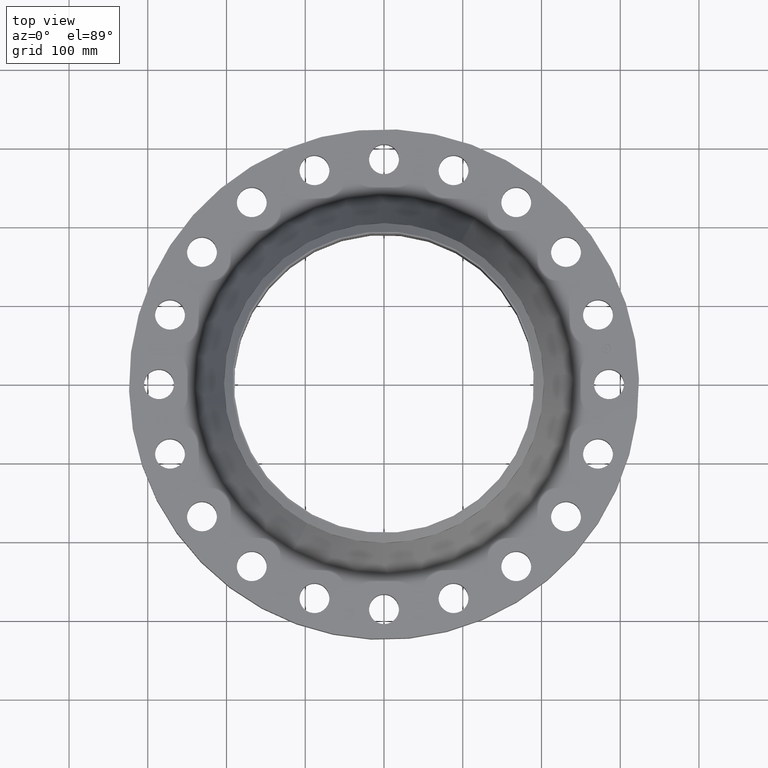
[diagram: clean part render]
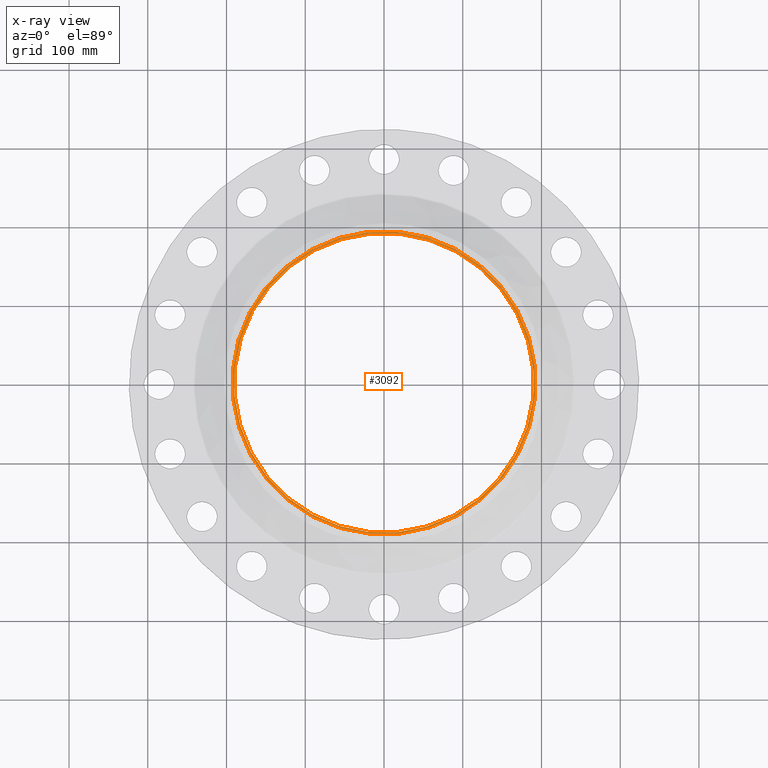
[diagram: x-ray — body ghosted, one internal face saturated and labeled with its STEP entity id]
A machine part, top view, then the same camera in x-ray: the body is ghosted and one INTERNAL B-rep face — a face not visible from any outside direction — is saturated and labeled: STEP entity #3092.
In plain terms, the highlighted planar face has unit normal (0, 0, -1).
Its self-contained STEP definition (entity closure, byte-faithful):
#2374=AXIS2_PLACEMENT_3D('Circle Axis2P3D',#2372,#2373,$) ;
#2412=AXIS2_PLACEMENT_3D('Circle Axis2P3D',#2410,#2411,$) ;
#3068=AXIS2_PLACEMENT_3D('Plane Axis2P3D',#3065,#3066,#3067) ;
#3072=AXIS2_PLACEMENT_3D('Circle Axis2P3D',#3070,#3071,$) ;
#3081=AXIS2_PLACEMENT_3D('Circle Axis2P3D',#3079,#3080,$) ;
#2372=CARTESIAN_POINT('Axis2P3D Location',(0.,0.,6.00000000001)) ;
#2376=CARTESIAN_POINT('Vertex',(3.59569153955,6.5818692142,6.00000000001)) ;
#2378=CARTESIAN_POINT('Vertex',(-3.59569153955,-6.5818692142,6.00000000001)) ;
#2410=CARTESIAN_POINT('Axis2P3D Location',(0.,0.,6.00000000001)) ;
#3065=CARTESIAN_POINT('Axis2P3D Location',(0.,8.00000000003,6.00000000002)) ;
#3070=CARTESIAN_POINT('Axis2P3D Location',(3.08532202411E-011,2.8555985223E-012,6.00000000002)) ;
#3074=CARTESIAN_POINT('Vertex',(3.63344158196,-6.65097020333,6.00000000002)) ;
#3076=CARTESIAN_POINT('Vertex',(-3.63344158196,6.65097020333,6.00000000002)) ;
#3079=CARTESIAN_POINT('Axis2P3D Location',(8.39223703654E-016,-1.39960134471E-011,6.00000000002)) ;
#2373=DIRECTION('Axis2P3D Direction',(-0.,0.,-0.0393700787402)) ;
#2411=DIRECTION('Axis2P3D Direction',(-0.,0.,-0.0393700787402)) ;
#3066=DIRECTION('Axis2P3D Direction',(0.,0.,-0.0393700787402)) ;
#3067=DIRECTION('Axis2P3D XDirection',(0.0393700787402,0.,0.)) ;
#3071=DIRECTION('Axis2P3D Direction',(0.,0.,-0.0393700787402)) ;
#3080=DIRECTION('Axis2P3D Direction',(0.,0.,-0.0393700787402)) ;
#3085=ORIENTED_EDGE('',*,*,#3078,.T.) ;
#3086=ORIENTED_EDGE('',*,*,#3083,.T.) ;
#3089=ORIENTED_EDGE('',*,*,#2414,.T.) ;
#3090=ORIENTED_EDGE('',*,*,#2380,.T.) ;
#3091=FACE_BOUND('',#3088,.T.) ;
#3092=ADVANCED_FACE('PartBody',(#3087,#3091),#3069,.F.) ;
#2375=CIRCLE('generated circle',#2374,7.50000000003) ;
#2413=CIRCLE('generated circle',#2412,7.50000000003) ;
#3073=CIRCLE('generated circle',#3072,7.57874015749) ;
#3082=CIRCLE('generated circle',#3081,7.57874015749) ;
#2380=EDGE_CURVE('',#2377,#2379,#2375,.T.) ;
#2414=EDGE_CURVE('',#2379,#2377,#2413,.T.) ;
#3078=EDGE_CURVE('',#3075,#3077,#3073,.F.) ;
#3083=EDGE_CURVE('',#3077,#3075,#3082,.F.) ;
#3084=EDGE_LOOP('',(#3085,#3086)) ;
#3088=EDGE_LOOP('',(#3089,#3090)) ;
#3087=FACE_OUTER_BOUND('',#3084,.T.) ;
#3069=PLANE('',#3068) ;
#2377=VERTEX_POINT('',#2376) ;
#2379=VERTEX_POINT('',#2378) ;
#3075=VERTEX_POINT('',#3074) ;
#3077=VERTEX_POINT('',#3076) ;